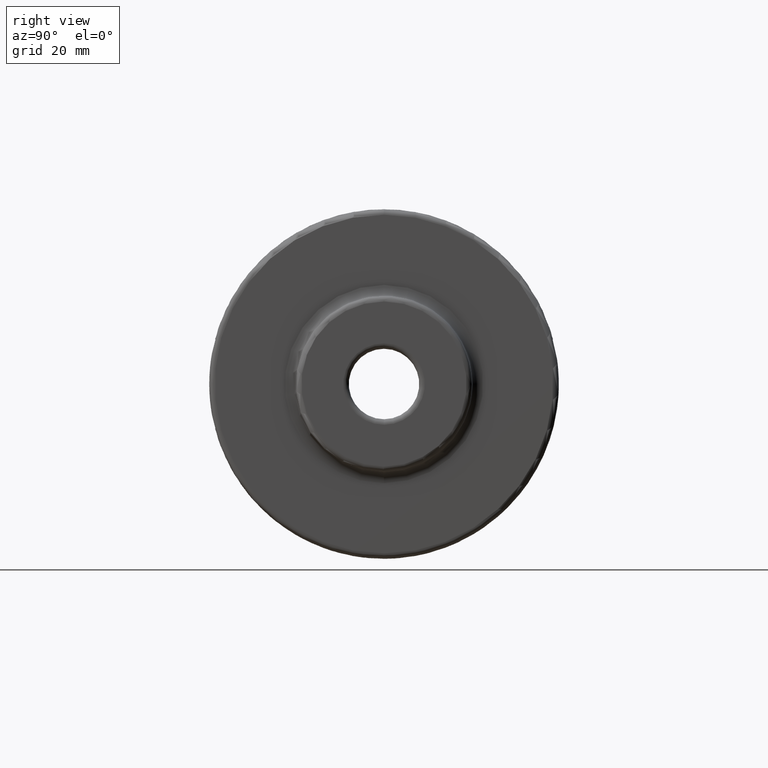
[diagram: clean part render]
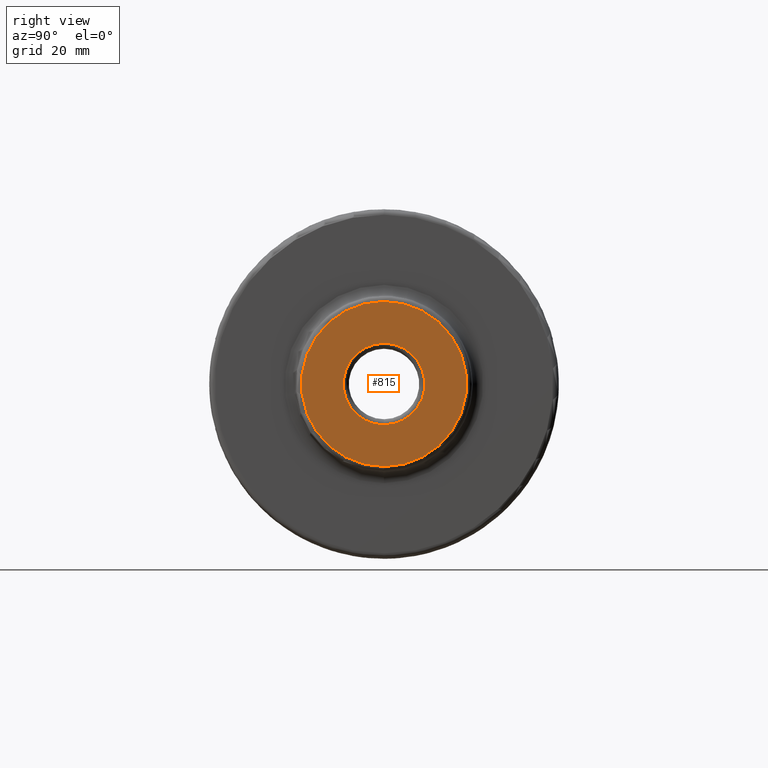
[diagram: same view with one face highlighted and labeled with its STEP entity id]
A machine part, right view. The second image highlights one B-rep face of the part: STEP entity #815.
In plain terms, the highlighted planar face has unit normal (1, 0, 0).
Its self-contained STEP definition (entity closure, byte-faithful):
#54=FACE_BOUND('',#137,.T.);
#64=PLANE('',#897);
#85=FACE_OUTER_BOUND('',#136,.T.);
#136=EDGE_LOOP('',(#564));
#137=EDGE_LOOP('',(#565));
#281=CIRCLE('',#893,7.35);
#285=CIRCLE('',#898,14.875);
#343=VERTEX_POINT('',#1324);
#346=VERTEX_POINT('',#1332);
#428=EDGE_CURVE('',#343,#343,#281,.T.);
#432=EDGE_CURVE('',#346,#346,#285,.T.);
#564=ORIENTED_EDGE('',*,*,#432,.F.);
#565=ORIENTED_EDGE('',*,*,#428,.F.);
#815=ADVANCED_FACE('',(#85,#54),#64,.T.);
#893=AXIS2_PLACEMENT_3D('',#1325,#1019,#1020);
#897=AXIS2_PLACEMENT_3D('',#1331,#1027,#1028);
#898=AXIS2_PLACEMENT_3D('',#1333,#1029,#1030);
#1019=DIRECTION('center_axis',(1.,0.,0.));
#1020=DIRECTION('ref_axis',(0.,-1.22464679914735E-16,1.));
#1027=DIRECTION('center_axis',(1.,0.,0.));
#1028=DIRECTION('ref_axis',(0.,0.,-1.));
#1029=DIRECTION('center_axis',(-1.,0.,0.));
#1030=DIRECTION('ref_axis',(0.,1.,6.12323399573677E-17));
#1324=CARTESIAN_POINT('',(31.75,1.80023079474661E-15,-7.35));
#1325=CARTESIAN_POINT('Origin',(31.75,0.,0.));
#1331=CARTESIAN_POINT('Origin',(31.75,-15.875,0.));
#1332=CARTESIAN_POINT('',(31.75,-1.82166211373169E-15,-14.875));
#1333=CARTESIAN_POINT('Origin',(31.75,0.,0.));